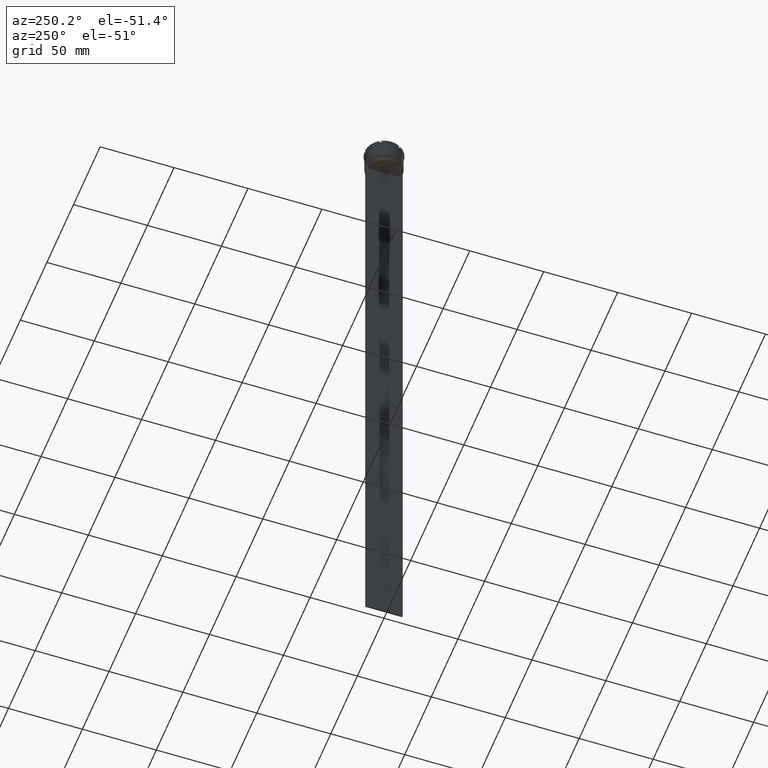
[diagram: clean part render]
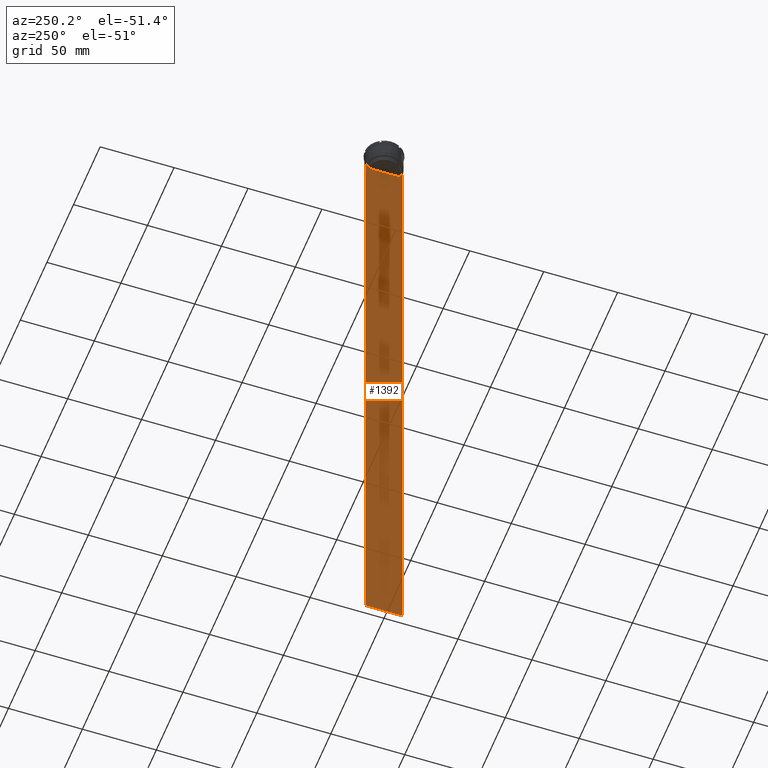
[diagram: same view with one face highlighted and labeled with its STEP entity id]
A machine part, auxiliary view. The second image highlights one B-rep face of the part: STEP entity #1392.
In plain terms, the highlighted planar face has unit normal (-1, 0, 0).
Its self-contained STEP definition (entity closure, byte-faithful):
#159 = VECTOR ( 'NONE', #203, 1000.000000000000000 ) ;
#191 = EDGE_CURVE ( 'NONE', #473, #597, #1151, .T. ) ;
#193 = DIRECTION ( 'NONE',  ( 0.000000000000000000, -1.000000000000000000, 0.000000000000000000 ) ) ;
#199 = LINE ( 'NONE', #1500, #1237 ) ;
#200 = CARTESIAN_POINT ( 'NONE',  ( -0.5000000000000000000, 11.22219891375843304, -14.16667035472756808 ) ) ;
#203 = DIRECTION ( 'NONE',  ( 0.000000000000000000, -1.000000000000000000, 0.000000000000000000 ) ) ;
#237 = CARTESIAN_POINT ( 'NONE',  ( -0.5000000000000000000, -12.49999999999999289, -464.0000000000000000 ) ) ;
#238 = ORIENTED_EDGE ( 'NONE', *, *, #1945, .F. ) ;
#259 = EDGE_CURVE ( 'NONE', #1950, #1248, #1376, .T. ) ;
#288 = CARTESIAN_POINT ( 'NONE',  ( -0.5000000000000000000, 10.88852607105296322, -14.50000000000000000 ) ) ;
#394 = EDGE_CURVE ( 'NONE', #1883, #2167, #2129, .T. ) ;
#395 = VECTOR ( 'NONE', #2259, 1000.000000000000000 ) ;
#430 = B_SPLINE_CURVE_WITH_KNOTS ( 'NONE', 3,
 ( #2862, #200, #868, #2269 ),
 .UNSPECIFIED., .F., .F.,
 ( 4, 4 ),
 ( 0.01935560801904634073, 0.02006307108468586772 ),
 .UNSPECIFIED. ) ;
#439 = AXIS2_PLACEMENT_3D ( 'NONE', #2589, #1267, #1053 ) ;
#460 = LINE ( 'NONE', #2443, #1327 ) ;
#469 = CARTESIAN_POINT ( 'NONE',  ( -0.5000000000000000000, 12.38991525394746773, -14.00000000000000178 ) ) ;
#473 = VERTEX_POINT ( 'NONE', #1278 ) ;
#481 = LINE ( 'NONE', #2175, #1454 ) ;
#482 = ORIENTED_EDGE ( 'NONE', *, *, #1999, .F. ) ;
#573 = EDGE_CURVE ( 'NONE', #2167, #2028, #430, .T. ) ;
#597 = VERTEX_POINT ( 'NONE', #1085 ) ;
#600 = CARTESIAN_POINT ( 'NONE',  ( -0.5000000000000000000, -11.38902980942626719, -14.00000000000000178 ) ) ;
#626 = CARTESIAN_POINT ( 'NONE',  ( -0.5000000000000000000, -10.88852607105296322, -14.50000000000000000 ) ) ;
#639 = CARTESIAN_POINT ( 'NONE',  ( -0.5000000000000000000, -12.49999999999999289, -464.0000000000000000 ) ) ;
#648 = CARTESIAN_POINT ( 'NONE',  ( -0.5000000000000000000, -12.49999999999999289, -14.00000000000000178 ) ) ;
#695 = ORIENTED_EDGE ( 'NONE', *, *, #1515, .F. ) ;
#715 = EDGE_CURVE ( 'NONE', #597, #2264, #1626, .T. ) ;
#829 = FACE_OUTER_BOUND ( 'NONE', #1871, .T. ) ;
#868 = CARTESIAN_POINT ( 'NONE',  ( -0.5000000000000000000, 11.05536450345590538, -14.33333719074559376 ) ) ;
#939 = DIRECTION ( 'NONE',  ( 0.000000000000000000, 0.000000000000000000, -1.000000000000000000 ) ) ;
#1053 = DIRECTION ( 'NONE',  ( 0.000000000000000000, 0.000000000000000000, 1.000000000000000000 ) ) ;
#1084 = DIRECTION ( 'NONE',  ( -0.000000000000000000, -0.000000000000000000, 1.000000000000000000 ) ) ;
#1085 = CARTESIAN_POINT ( 'NONE',  ( -0.5000000000000000000, -12.38991525394746773, -14.00000000000000178 ) ) ;
#1113 = VERTEX_POINT ( 'NONE', #237 ) ;
#1114 = EDGE_CURVE ( 'NONE', #1950, #1883, #460, .T. ) ;
#1129 = CARTESIAN_POINT ( 'NONE',  ( -0.5000000000000000000, -10.88852607105296144, -17.00000000000000000 ) ) ;
#1139 = VECTOR ( 'NONE', #1947, 1000.000000000000000 ) ;
#1151 = LINE ( 'NONE', #2242, #159 ) ;
#1237 = VECTOR ( 'NONE', #1084, 1000.000000000000000 ) ;
#1248 = VERTEX_POINT ( 'NONE', #1421 ) ;
#1252 = VERTEX_POINT ( 'NONE', #2119 ) ;
#1256 = CARTESIAN_POINT ( 'NONE',  ( -0.5000000000000000000, -11.05536450423839234, -14.33333718996393102 ) ) ;
#1267 = DIRECTION ( 'NONE',  ( -1.000000000000000000, 0.000000000000000000, 0.000000000000000000 ) ) ;
#1278 = CARTESIAN_POINT ( 'NONE',  ( -0.5000000000000000000, -11.38902980942626719, -14.00000000000000178 ) ) ;
#1295 = CARTESIAN_POINT ( 'NONE',  ( -0.5000000000000000000, -12.49999999999999289, -14.00000000000000178 ) ) ;
#1323 = VERTEX_POINT ( 'NONE', #2790 ) ;
#1327 = VECTOR ( 'NONE', #2248, 1000.000000000000000 ) ;
#1376 = LINE ( 'NONE', #2095, #395 ) ;
#1392 = ADVANCED_FACE ( 'NONE', ( #829 ), #1718, .T. ) ;
#1411 = VECTOR ( 'NONE', #2738, 1000.000000000000000 ) ;
#1421 = CARTESIAN_POINT ( 'NONE',  ( -0.5000000000000000000, 12.50000000000000711, -464.0000000000000000 ) ) ;
#1422 = ORIENTED_EDGE ( 'NONE', *, *, #1114, .F. ) ;
#1454 = VECTOR ( 'NONE', #193, 1000.000000000000000 ) ;
#1500 = CARTESIAN_POINT ( 'NONE',  ( -0.5000000000000000000, -10.88852607105296322, 0.000000000000000000 ) ) ;
#1515 = EDGE_CURVE ( 'NONE', #1113, #1248, #2634, .T. ) ;
#1519 = DIRECTION ( 'NONE',  ( 0.000000000000000000, 1.000000000000000000, 0.000000000000000000 ) ) ;
#1547 = LINE ( 'NONE', #1779, #1139 ) ;
#1622 = ORIENTED_EDGE ( 'NONE', *, *, #1756, .F. ) ;
#1626 = LINE ( 'NONE', #2017, #1411 ) ;
#1651 = ORIENTED_EDGE ( 'NONE', *, *, #259, .T. ) ;
#1676 = DIRECTION ( 'NONE',  ( 0.000000000000000000, -1.000000000000000000, 0.000000000000000000 ) ) ;
#1718 = PLANE ( 'NONE',  #439 ) ;
#1727 = VECTOR ( 'NONE', #1676, 1000.000000000000000 ) ;
#1756 = EDGE_CURVE ( 'NONE', #1252, #473, #2353, .T. ) ;
#1779 = CARTESIAN_POINT ( 'NONE',  ( -0.5000000000000000000, 10.88852607105296322, 0.000000000000000000 ) ) ;
#1867 = VECTOR ( 'NONE', #939, 1000.000000000000000 ) ;
#1871 = EDGE_LOOP ( 'NONE', ( #2088, #2517, #1422, #1651, #695, #482, #2189, #2747, #1622, #1879, #238, #2595 ) ) ;
#1879 = ORIENTED_EDGE ( 'NONE', *, *, #2679, .F. ) ;
#1883 = VERTEX_POINT ( 'NONE', #469 ) ;
#1933 = EDGE_CURVE ( 'NONE', #2028, #1323, #1547, .T. ) ;
#1945 = EDGE_CURVE ( 'NONE', #1323, #2331, #481, .T. ) ;
#1947 = DIRECTION ( 'NONE',  ( 0.000000000000000000, 0.000000000000000000, -1.000000000000000000 ) ) ;
#1950 = VERTEX_POINT ( 'NONE', #2702 ) ;
#1952 = VECTOR ( 'NONE', #1519, 1000.000000000000000 ) ;
#1999 = EDGE_CURVE ( 'NONE', #2264, #1113, #2742, .T. ) ;
#2017 = CARTESIAN_POINT ( 'NONE',  ( -0.5000000000000000000, -12.49999999999999289, -14.00000000000000178 ) ) ;
#2028 = VERTEX_POINT ( 'NONE', #288 ) ;
#2035 = CARTESIAN_POINT ( 'NONE',  ( -0.5000000000000000000, -12.49999999999999289, 11.01999200639360765 ) ) ;
#2088 = ORIENTED_EDGE ( 'NONE', *, *, #573, .F. ) ;
#2095 = CARTESIAN_POINT ( 'NONE',  ( -0.5000000000000000000, 12.50000000000000711, 11.01999200639360765 ) ) ;
#2097 = CARTESIAN_POINT ( 'NONE',  ( -0.5000000000000000000, 11.38902980942626719, -14.00000000000000178 ) ) ;
#2119 = CARTESIAN_POINT ( 'NONE',  ( -0.5000000000000000000, -10.88852607105296322, -14.50000000000000000 ) ) ;
#2129 = LINE ( 'NONE', #1295, #1727 ) ;
#2135 = CARTESIAN_POINT ( 'NONE',  ( -0.5000000000000000000, -11.22219891450652973, -14.16667035398018903 ) ) ;
#2167 = VERTEX_POINT ( 'NONE', #2097 ) ;
#2175 = CARTESIAN_POINT ( 'NONE',  ( -0.5000000000000000000, 10.90000000000000213, -17.00000000000000000 ) ) ;
#2189 = ORIENTED_EDGE ( 'NONE', *, *, #715, .F. ) ;
#2242 = CARTESIAN_POINT ( 'NONE',  ( -0.5000000000000000000, -12.49999999999999289, -14.00000000000000178 ) ) ;
#2248 = DIRECTION ( 'NONE',  ( 0.000000000000000000, -1.000000000000000000, 0.000000000000000000 ) ) ;
#2259 = DIRECTION ( 'NONE',  ( 0.000000000000000000, 0.000000000000000000, -1.000000000000000000 ) ) ;
#2264 = VERTEX_POINT ( 'NONE', #648 ) ;
#2269 = CARTESIAN_POINT ( 'NONE',  ( -0.5000000000000000000, 10.88852607105296322, -14.50000000000000000 ) ) ;
#2331 = VERTEX_POINT ( 'NONE', #1129 ) ;
#2353 = B_SPLINE_CURVE_WITH_KNOTS ( 'NONE', 3,
 ( #626, #1256, #2135, #600 ),
 .UNSPECIFIED., .F., .F.,
 ( 4, 4 ),
 ( 0.05041323384703226551, 0.05112713601261605068 ),
 .UNSPECIFIED. ) ;
#2443 = CARTESIAN_POINT ( 'NONE',  ( -0.5000000000000000000, -12.49999999999999289, -14.00000000000000178 ) ) ;
#2517 = ORIENTED_EDGE ( 'NONE', *, *, #394, .F. ) ;
#2589 = CARTESIAN_POINT ( 'NONE',  ( -0.5000000000000000000, -12.49999999999999289, 11.01999200639360765 ) ) ;
#2595 = ORIENTED_EDGE ( 'NONE', *, *, #1933, .F. ) ;
#2634 = LINE ( 'NONE', #639, #1952 ) ;
#2679 = EDGE_CURVE ( 'NONE', #2331, #1252, #199, .T. ) ;
#2702 = CARTESIAN_POINT ( 'NONE',  ( -0.5000000000000000000, 12.50000000000000711, -14.00000000000000178 ) ) ;
#2738 = DIRECTION ( 'NONE',  ( 0.000000000000000000, -1.000000000000000000, 0.000000000000000000 ) ) ;
#2742 = LINE ( 'NONE', #2035, #1867 ) ;
#2747 = ORIENTED_EDGE ( 'NONE', *, *, #191, .F. ) ;
#2790 = CARTESIAN_POINT ( 'NONE',  ( -0.5000000000000000000, 10.88852607105296144, -17.00000000000000000 ) ) ;
#2862 = CARTESIAN_POINT ( 'NONE',  ( -0.5000000000000000000, 11.38902980942626719, -14.00000000000000178 ) ) ;